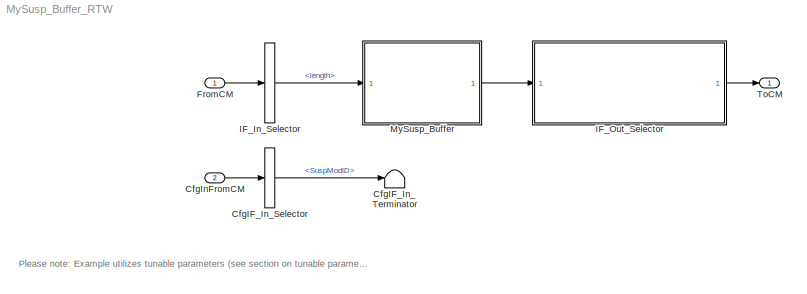
MODEL MySusp_Buffer_RTW
KIND model
CONFIG InitFcn = vehicle = 'Car'; if ~length(which('cmself')), cmenv; end\nMySusp_Buffer_RTW_bus
CONFIG PreLoadFcn = vehicle = 'Car'; if ~length(which('cmself')), cmenv; end\nMySusp_Buffer_RTW_bus\nMySusp_Buffer_RTW_params
BLOCK [BusSelector] CfgIF_In_Selector
  OutputAsBus = off
  OutputSignals = SuspModID
  Ports = [1, 1]
  SID = 9
BLOCK [Terminator] CfgIF_In_Terminator
  SID = 10
BLOCK [Inport] CfgInFromCM
  IconDisplay = Port number
  OutDataTypeStr = Bus: cmSusp_BufferCfgIn
  Port = 2
  SID = 8
BLOCK [Inport] FromCM
  IconDisplay = Port number
  OutDataTypeStr = Bus: cmSusp_BufferIn
  SID = 1
BLOCK [BusSelector] IF_In_Selector
  OutputAsBus = off
  OutputSignals = length
  Ports = [1, 1]
  SID = 2
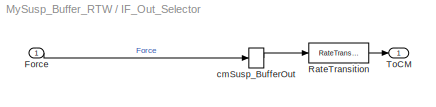
BLOCK [SubSystem] IF_Out_Selector
  OpenFcn = cmSignalSelect('SignalSelection_CB',gcb)
  Ports = [1, 1]
  RequestExecContextInheritance = off
  SID = 5
  UserData = DataTag0
  UserDataPersistent = on
BLOCK [Inport] IF_Out_Selector/Force
  IconDisplay = Port number
  SID = 13
BLOCK [RateTransition] IF_Out_Selector/RateTransition
  OutPortSampleTime = str2num(get_param(bdroot,'FixedStep'))
  SID = 6
BLOCK [Outport] IF_Out_Selector/ToCM
  IconDisplay = Port number
  SID = 7
BLOCK [BusCreator] IF_Out_Selector/cmSusp_BufferOut
  InheritFromInputs = on
  Inputs = 1
  Ports = [1, 1]
  SID = 11
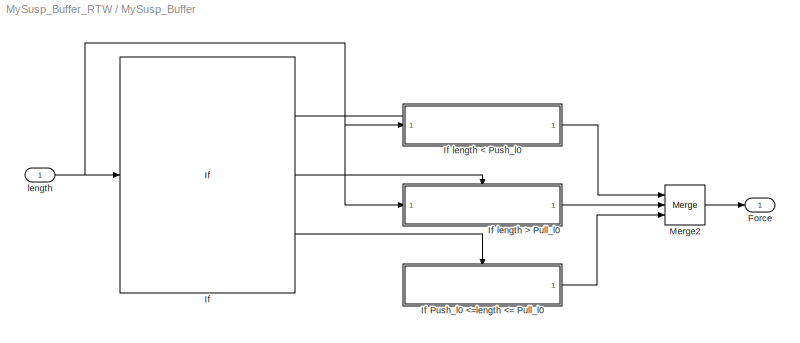
BLOCK [SubSystem] MySusp_Buffer
  Ports = [1, 1]
  RequestExecContextInheritance = off
  SID = 60
BLOCK [Outport] MySusp_Buffer/Force
  IconDisplay = Port number
  SID = 62
BLOCK [If] MySusp_Buffer/If
  ElseIfExpressions = u1 > l0_Pull
  IfExpression = u1 < l0_Push
  Ports = [1, 3]
  SID = 18
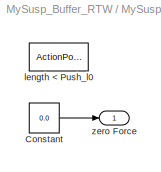
BLOCK [SubSystem] MySusp_Buffer/If Push_l0 <=length <= Pull_l0 
  Ports = [0, 1, 0, 0, 0, 0, 0, 1]
  RequestExecContextInheritance = off
  SID = 34
  TreatAsAtomicUnit = on
BLOCK [Constant] MySusp_Buffer/If Push_l0 <=length <= Pull_l0 /Constant
  SID = 37
  Value = 0.0
BLOCK [ActionPort] MySusp_Buffer/If Push_l0 <=length <= Pull_l0 /length < Push_l0
  ActionType = else
  SID = 35
BLOCK [Outport] MySusp_Buffer/If Push_l0 <=length <= Pull_l0 /zero Force
  IconDisplay = Port number
  InitialOutput = 0
  SID = 40
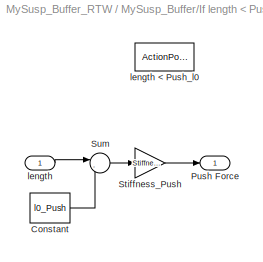
BLOCK [SubSystem] MySusp_Buffer/If length < Push_l0
  Ports = [1, 1, 0, 0, 0, 0, 0, 1]
  RequestExecContextInheritance = off
  SID = 19
  TreatAsAtomicUnit = on
BLOCK [Constant] MySusp_Buffer/If length < Push_l0/Constant
  SID = 45
  Value = l0_Push
BLOCK [Outport] MySusp_Buffer/If length < Push_l0/Push Force
  IconDisplay = Port number
  InitialOutput = 0
  SID = 25
BLOCK [Gain] MySusp_Buffer/If length < Push_l0/Stiffness_Push
  Gain = Stiffness_Push
  OutDataTypeStr = Inherit: Inherit via internal rule
  ParamDataTypeStr = Inherit: Inherit via internal rule
  SID = 48
  SaturateOnIntegerOverflow = off
BLOCK [Sum] MySusp_Buffer/If length < Push_l0/Sum
  IconShape = round
  InputSameDT = off
  Inputs = |-+
  OutDataTypeStr = Inherit: Inherit via internal rule
  Ports = [2, 1]
  SID = 47
  SaturateOnIntegerOverflow = off
BLOCK [Inport] MySusp_Buffer/If length < Push_l0/length
  IconDisplay = Port number
  SID = 42
BLOCK [ActionPort] MySusp_Buffer/If length < Push_l0/length < Push_l0
  ActionType = then
  SID = 20
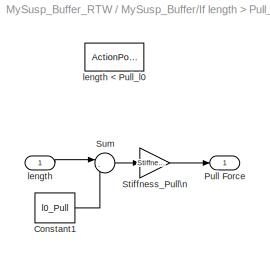
BLOCK [SubSystem] MySusp_Buffer/If length > Pull_l0
  Ports = [1, 1, 0, 0, 0, 0, 0, 1]
  RequestExecContextInheritance = off
  SID = 27
  TreatAsAtomicUnit = on
BLOCK [Constant] MySusp_Buffer/If length > Pull_l0/Constant1
  SID = 55
  Value = l0_Pull
BLOCK [Outport] MySusp_Buffer/If length > Pull_l0/Pull Force
  IconDisplay = Port number
  InitialOutput = 0
  SID = 33
BLOCK [Gain] MySusp_Buffer/If length > Pull_l0/Stiffness_Pull\n
  Gain = Stiffness_Pull
  OutDataTypeStr = Inherit: Inherit via internal rule
  ParamDataTypeStr = Inherit: Inherit via internal rule
  SID = 56
  SaturateOnIntegerOverflow = off
BLOCK [Sum] MySusp_Buffer/If length > Pull_l0/Sum
  IconShape = round
  InputSameDT = off
  Inputs = |-+
  OutDataTypeStr = Inherit: Inherit via internal rule
  Ports = [2, 1]
  SID = 59
  SaturateOnIntegerOverflow = off
BLOCK [Inport] MySusp_Buffer/If length > Pull_l0/length
  IconDisplay = Port number
  SID = 44
BLOCK [ActionPort] MySusp_Buffer/If length > Pull_l0/length < Pull_l0
  ActionType = elseif
  SID = 28
BLOCK [Merge] MySusp_Buffer/Merge2
  Inputs = 3
  Ports = [3, 1]
  SID = 26
BLOCK [Inport] MySusp_Buffer/length
  IconDisplay = Port number
  SID = 61
BLOCK [Outport] ToCM
  IconDisplay = Port number
  OutDataTypeStr = Bus: cmSusp_BufferOut
  SID = 4
ANNOTATION (root): \n \n Please note: Example utilizes tunable parameters (see section on tunable parameters in the Programmers Guide). \n \n For user models of the class Susp_Buffer at least one modelclass-specific parameter (*.TimeInvariant) needs to be specified in the \n "Modelclass-specific Parameters" dialog of the CarMaker GUI.
LINE CfgIF_In_Selector:1 -> CfgIF_In_Terminator:1
LINE CfgInFromCM:1 -> CfgIF_In_Selector:1
LINE FromCM:1 -> IF_In_Selector:1
LINE IF_In_Selector:1 -> MySusp_Buffer:1
LINE IF_Out_Selector/Force:1 -> IF_Out_Selector/cmSusp_BufferOut:1
LINE IF_Out_Selector/RateTransition:1 -> IF_Out_Selector/ToCM:1
LINE IF_Out_Selector/cmSusp_BufferOut:1 -> IF_Out_Selector/RateTransition:1
LINE IF_Out_Selector:1 -> ToCM:1
LINE MySusp_Buffer/If Push_l0 <=length <= Pull_l0 /Constant:1 -> MySusp_Buffer/If Push_l0 <=length <= Pull_l0 /zero Force:1
LINE MySusp_Buffer/If Push_l0 <=length <= Pull_l0 :1 -> MySusp_Buffer/Merge2:3
LINE MySusp_Buffer/If length < Push_l0/Constant:1 -> MySusp_Buffer/If length < Push_l0/Sum:2
LINE MySusp_Buffer/If length < Push_l0/Stiffness_Push:1 -> MySusp_Buffer/If length < Push_l0/Push Force:1
LINE MySusp_Buffer/If length < Push_l0/Sum:1 -> MySusp_Buffer/If length < Push_l0/Stiffness_Push:1
LINE MySusp_Buffer/If length < Push_l0/length:1 -> MySusp_Buffer/If length < Push_l0/Sum:1
LINE MySusp_Buffer/If length < Push_l0:1 -> MySusp_Buffer/Merge2:1
LINE MySusp_Buffer/If length > Pull_l0/Constant1:1 -> MySusp_Buffer/If length > Pull_l0/Sum:2
LINE MySusp_Buffer/If length > Pull_l0/Stiffness_Pull\n:1 -> MySusp_Buffer/If length > Pull_l0/Pull Force:1
LINE MySusp_Buffer/If length > Pull_l0/Sum:1 -> MySusp_Buffer/If length > Pull_l0/Stiffness_Pull\n:1
LINE MySusp_Buffer/If length > Pull_l0/length:1 -> MySusp_Buffer/If length > Pull_l0/Sum:1
LINE MySusp_Buffer/If length > Pull_l0:1 -> MySusp_Buffer/Merge2:2
LINE MySusp_Buffer/If:1 -> MySusp_Buffer/If length < Push_l0:ifaction
LINE MySusp_Buffer/If:2 -> MySusp_Buffer/If length > Pull_l0:ifaction
LINE MySusp_Buffer/If:3 -> MySusp_Buffer/If Push_l0 <=length <= Pull_l0 :ifaction
LINE MySusp_Buffer/Merge2:1 -> MySusp_Buffer/Force:1
NET MySusp_Buffer/length:1 -> MySusp_Buffer/If length < Push_l0:1, MySusp_Buffer/If length > Pull_l0:1, MySusp_Buffer/If:1
LINE MySusp_Buffer:1 -> IF_Out_Selector:1
note: NET lines group one-source signal fan-out (src -> all destinations, sorted); 1:1 wires keep LINE
